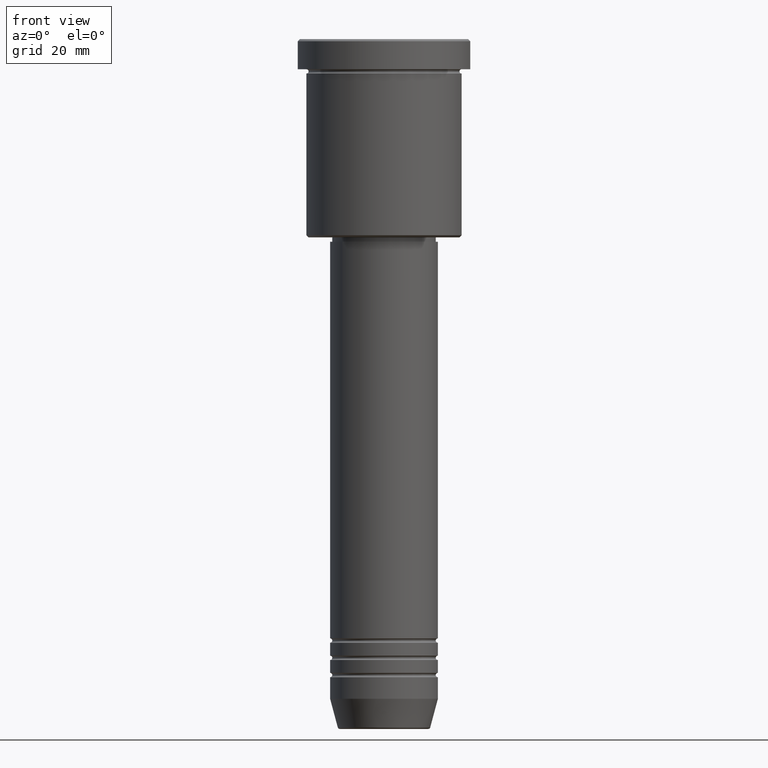
[diagram: clean part render]
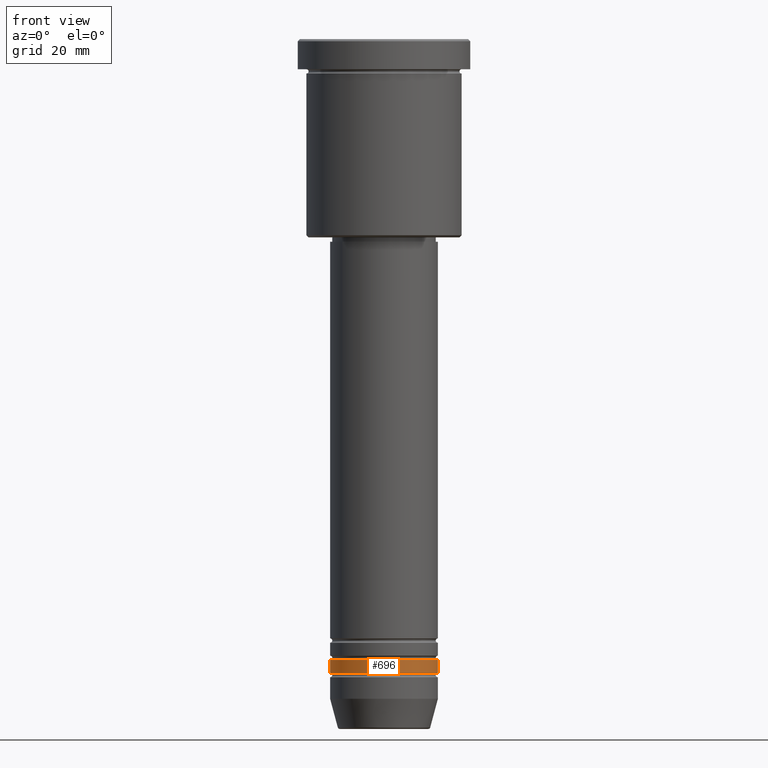
[diagram: same view with one face highlighted and labeled with its STEP entity id]
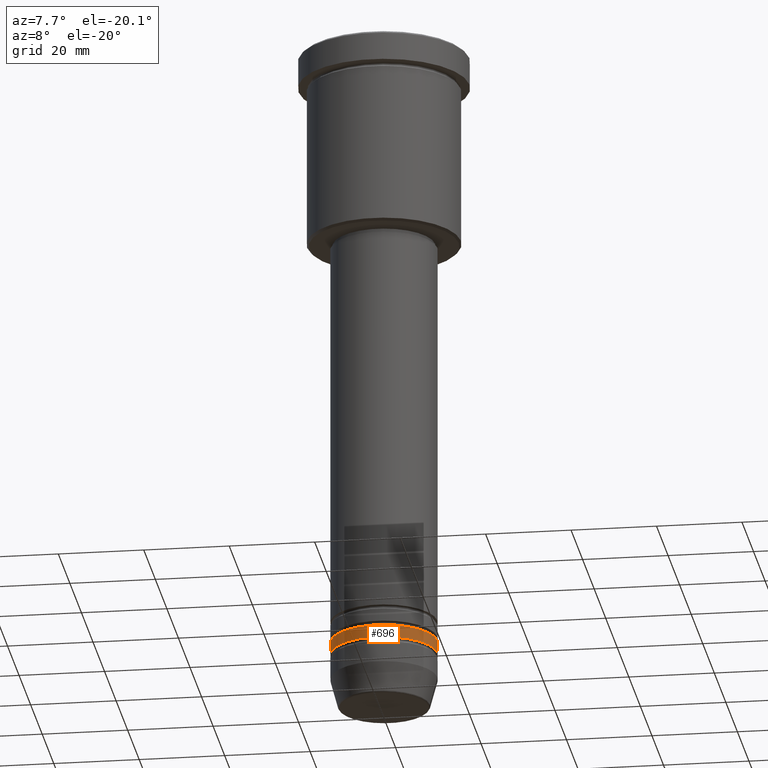
[diagram: same view with one face highlighted and labeled with its STEP entity id]
A machine part, front view. The second image highlights one B-rep face of the part: STEP entity #696.
A second angle (auxiliary view) of the same face is appended — the face is thin or edge-on in the first view.
In plain terms, the highlighted cylindrical surface (partial cylindrical patch) has radius 12.5 mm, axis along (-0, -0, 1).
Its self-contained STEP definition (entity closure, byte-faithful):
#16 = LINE ( 'NONE', #1129, #916 ) ;
#20 = DIRECTION ( 'NONE',  ( -0.000000000000000000, -0.000000000000000000, 1.000000000000000000 ) ) ;
#42 = DIRECTION ( 'NONE',  ( -0.000000000000000000, -0.000000000000000000, 1.000000000000000000 ) ) ;
#75 = AXIS2_PLACEMENT_3D ( 'NONE', #459, #20, #243 ) ;
#79 = CARTESIAN_POINT ( 'NONE',  ( -12.50000000000000000, 1.530808498934191521E-15, -146.9999999999999716 ) ) ;
#127 = ORIENTED_EDGE ( 'NONE', *, *, #1157, .T. ) ;
#186 = CARTESIAN_POINT ( 'NONE',  ( 0.000000000000000000, 0.000000000000000000, 0.000000000000000000 ) ) ;
#187 = VERTEX_POINT ( 'NONE', #490 ) ;
#196 = AXIS2_PLACEMENT_3D ( 'NONE', #186, #889, #1005 ) ;
#210 = DIRECTION ( 'NONE',  ( -0.000000000000000000, -0.000000000000000000, 1.000000000000000000 ) ) ;
#220 = EDGE_CURVE ( 'NONE', #533, #1172, #555, .T. ) ;
#221 = EDGE_LOOP ( 'NONE', ( #359, #127, #288, #1099 ) ) ;
#243 = DIRECTION ( 'NONE',  ( 1.000000000000000000, 0.000000000000000000, 0.000000000000000000 ) ) ;
#288 = ORIENTED_EDGE ( 'NONE', *, *, #1052, .T. ) ;
#359 = ORIENTED_EDGE ( 'NONE', *, *, #566, .F. ) ;
#411 = CARTESIAN_POINT ( 'NONE',  ( 0.000000000000000000, 0.000000000000000000, -144.0000000000000000 ) ) ;
#459 = CARTESIAN_POINT ( 'NONE',  ( 0.000000000000000000, 0.000000000000000000, -146.9999999999999716 ) ) ;
#485 = DIRECTION ( 'NONE',  ( -0.000000000000000000, -0.000000000000000000, 1.000000000000000000 ) ) ;
#490 = CARTESIAN_POINT ( 'NONE',  ( 12.50000000000000000, 0.000000000000000000, -146.9999999999999716 ) ) ;
#533 = VERTEX_POINT ( 'NONE', #931 ) ;
#555 = CIRCLE ( 'NONE', #758, 12.50000000000000000 ) ;
#566 = EDGE_CURVE ( 'NONE', #996, #533, #16, .T. ) ;
#696 = ADVANCED_FACE ( 'NONE', ( #1000 ), #817, .T. ) ;
#758 = AXIS2_PLACEMENT_3D ( 'NONE', #411, #485, #1017 ) ;
#817 = CYLINDRICAL_SURFACE ( 'NONE', #196, 12.50000000000000000 ) ;
#859 = CARTESIAN_POINT ( 'NONE',  ( 12.50000000000000000, 0.000000000000000000, -144.0000000000000000 ) ) ;
#889 = DIRECTION ( 'NONE',  ( -0.000000000000000000, -0.000000000000000000, 1.000000000000000000 ) ) ;
#908 = CARTESIAN_POINT ( 'NONE',  ( 12.50000000000000000, 0.000000000000000000, 0.000000000000000000 ) ) ;
#916 = VECTOR ( 'NONE', #42, 1000.000000000000000 ) ;
#926 = VECTOR ( 'NONE', #210, 1000.000000000000000 ) ;
#931 = CARTESIAN_POINT ( 'NONE',  ( -12.50000000000000000, 1.530808498934191521E-15, -144.0000000000000000 ) ) ;
#996 = VERTEX_POINT ( 'NONE', #79 ) ;
#1000 = FACE_OUTER_BOUND ( 'NONE', #221, .T. ) ;
#1005 = DIRECTION ( 'NONE',  ( 1.000000000000000000, 0.000000000000000000, 0.000000000000000000 ) ) ;
#1017 = DIRECTION ( 'NONE',  ( 1.000000000000000000, 0.000000000000000000, 0.000000000000000000 ) ) ;
#1052 = EDGE_CURVE ( 'NONE', #187, #1172, #1112, .T. ) ;
#1099 = ORIENTED_EDGE ( 'NONE', *, *, #220, .F. ) ;
#1104 = CIRCLE ( 'NONE', #75, 12.50000000000000000 ) ;
#1112 = LINE ( 'NONE', #908, #926 ) ;
#1129 = CARTESIAN_POINT ( 'NONE',  ( -12.50000000000000000, 1.530808498934191521E-15, 0.000000000000000000 ) ) ;
#1157 = EDGE_CURVE ( 'NONE', #996, #187, #1104, .T. ) ;
#1172 = VERTEX_POINT ( 'NONE', #859 ) ;